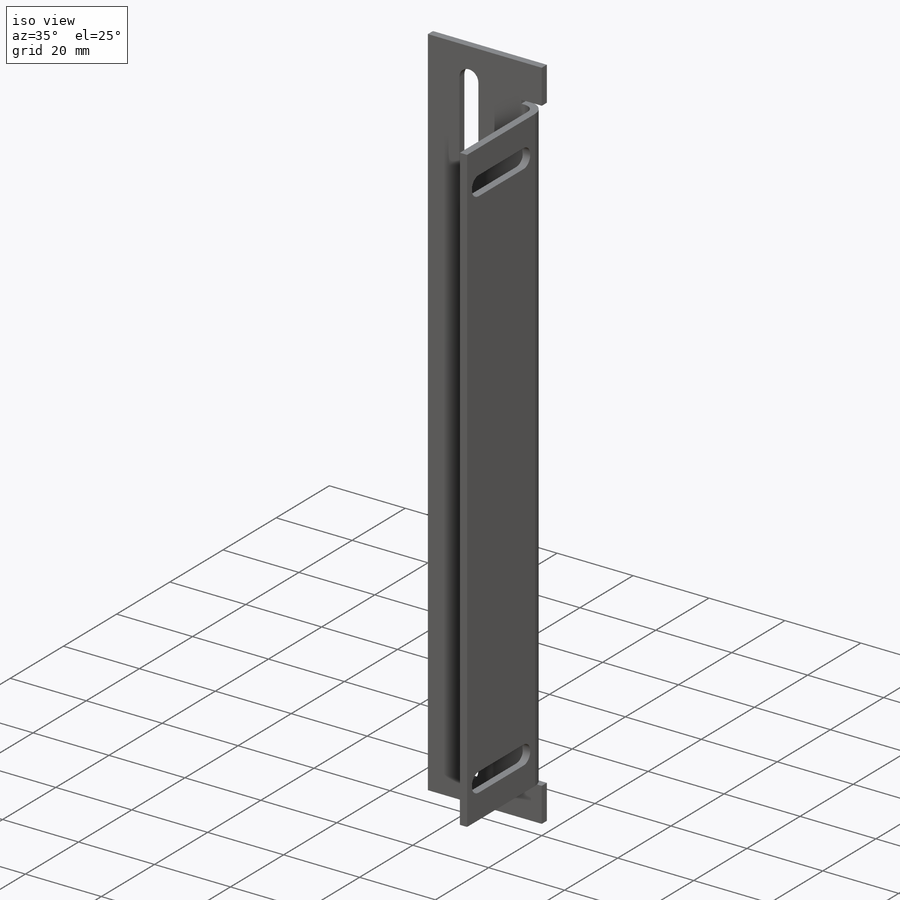
[diagram: iso view]
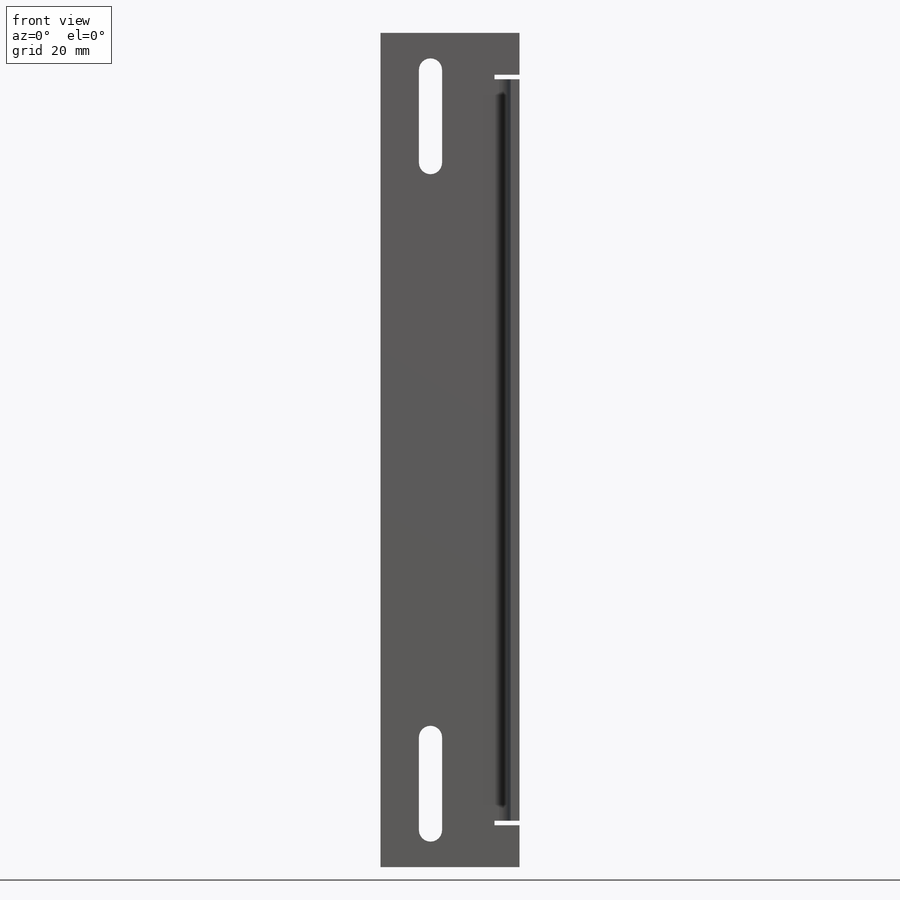
[diagram: front view]
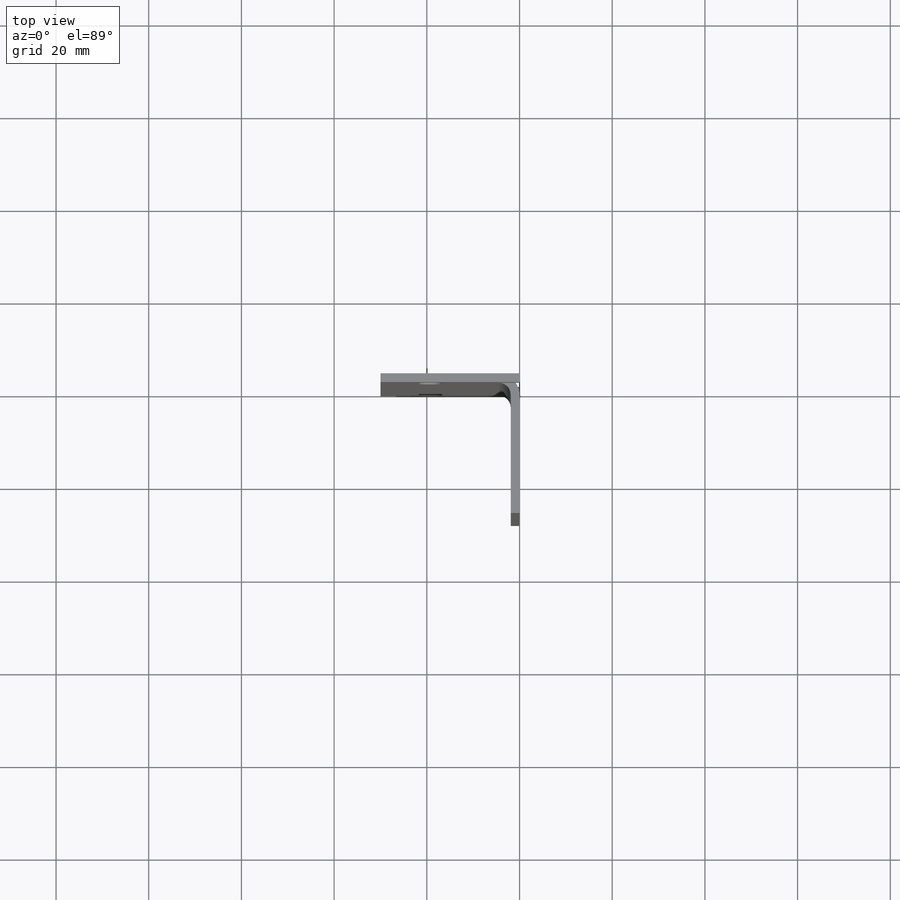
[diagram: top view]
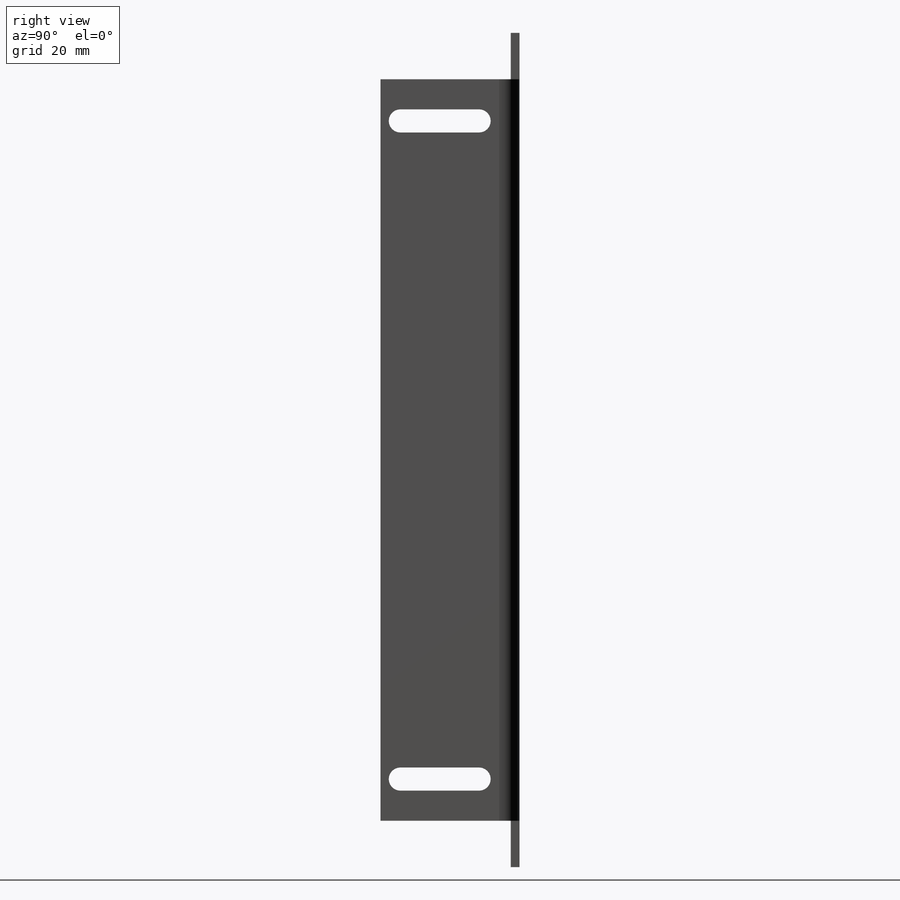
[diagram: right view]
SOLIDWORKS PART (.sldprt)
format: sldprt  version: not decoded by parser v0  size: 317,952 bytes
history: native  units: mm
features: sketch x16, sheet_metal_op x5, cut_extrude x2, material x1 + 1 further entry (+13 scaffold rows collapsed; 1 parser-record rows omitted)
feature tree (39):
  scaffold x13  (default folders/planes/origin — collapsed)
  material  "Material <not specified>"
  sketch  "Sketch1"  dims[c1.D1=180.0mm c1.D2=30.0mm c2.D1=2.54mm c2.D2=0.5 c2.D3=0.0mm c2.D6=500.0mm]
  sheet_metal_op  "Base-Flange1"
  sketch  "Sketch8"  dims[c1.D1=10.0mm c1.D2=10.0mm c2.D1=2.54mm c2.D4=90.0deg c2.D5=1.0 c2.D8=~0.94869mm c2.D9=~0.94869mm c3.D1=2.54mm c3.D2=500.0mm c3.D3=0.0mm c3.D6=10.0mm c3.D7=30.0mm]
  sketch  "Sketch9"  dims[c1.D3=~3.156159mm c1.D1=71.0mm c1.D2=71.0mm c2.D3=17.0mm]
  cut_extrude  "Cut-Extrude1"  Depth=10mm
  sketch  "Sketch10"
  sketch  "Sketch11"  dims[c1.D1=~2.573229mm c1.D2=2.5mm c2.D1=8.0mm c2.D2=8.0mm]
  cut_extrude  "Cut-Extrude2"  Depth=10mm
  sketch  "Bend-Lines1"
  sketch  "Bounding-Box1"
  sheet_metal_op  "Sheet-Metal1"
  "Flat-Pattern1"
  sketch  "Bend-Lines2"
  sketch  "Bounding-Box2"
  parser-record x1  (decoder bookkeeping rows leaked as tree rows — omitted from the tree; the rows remain in map.json)
  sheet_metal_op  "Flat-Pattern1"
  sketch  "Bend-Lines2"
  sketch  "Bounding-Box2"  dims[Sketch Transformation1=0.0deg Sheet-Metal3=0.0 D1=2.54mm D2=500.0mm D3=0.0mm D6=500.0mm]
  sheet_metal_op  "Flat-Pattern1"
  sketch  "Bend-Lines2"
  sketch  "Bounding-Box2"  dims[Sketch Transformation1=0.0deg Sheet-Metal4=0.0 D1=2.54mm D2=500.0mm D3=0.0mm D6=500.0mm]
  sheet_metal_op  "Flat-Pattern1"
  sketch  "Bend-Lines2"
  sketch  "Bounding-Box2"  dims[Sketch Transformation1=0.0deg]
  sketch  "Sketch10-1"
decode coverage: 9 of 23 modeling features carry decoded parameters; 1 rows unclassified (native names shown)
note: ~ marks probable driven/reference dimensions
note: suppression state not decoded; provenance and decode notes live in map.json
